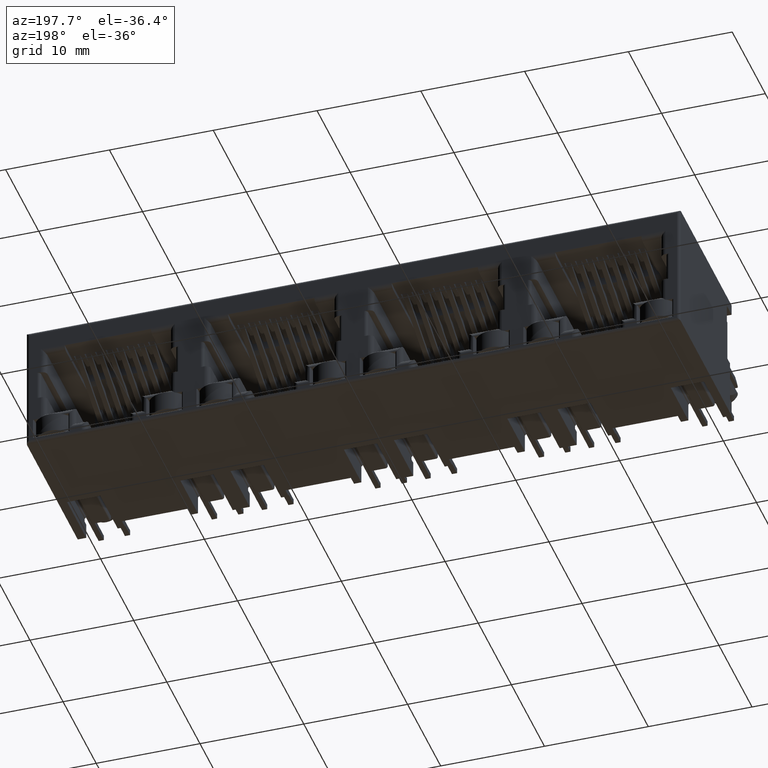
[diagram: clean part render]
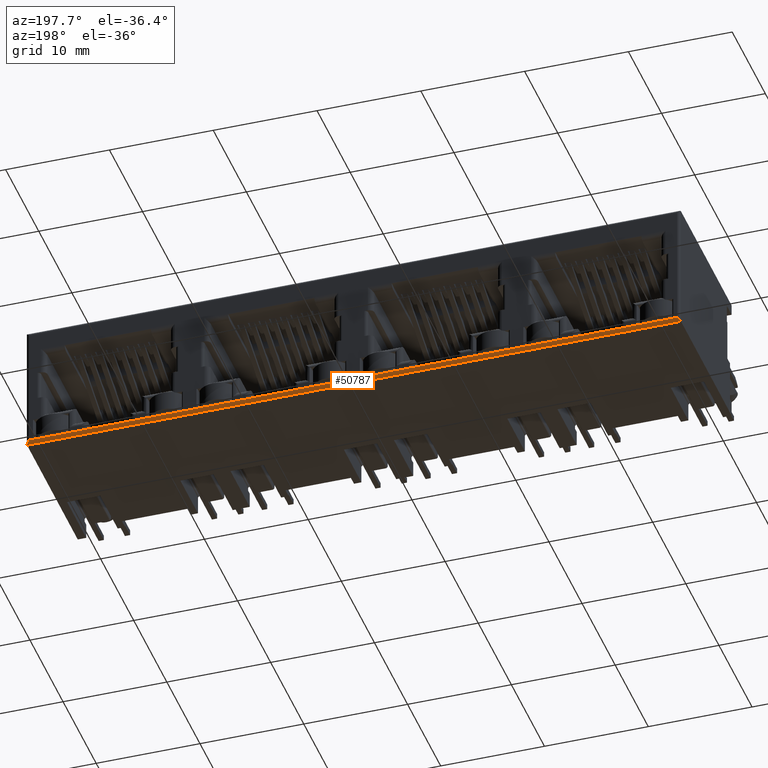
[diagram: same view with one face highlighted and labeled with its STEP entity id]
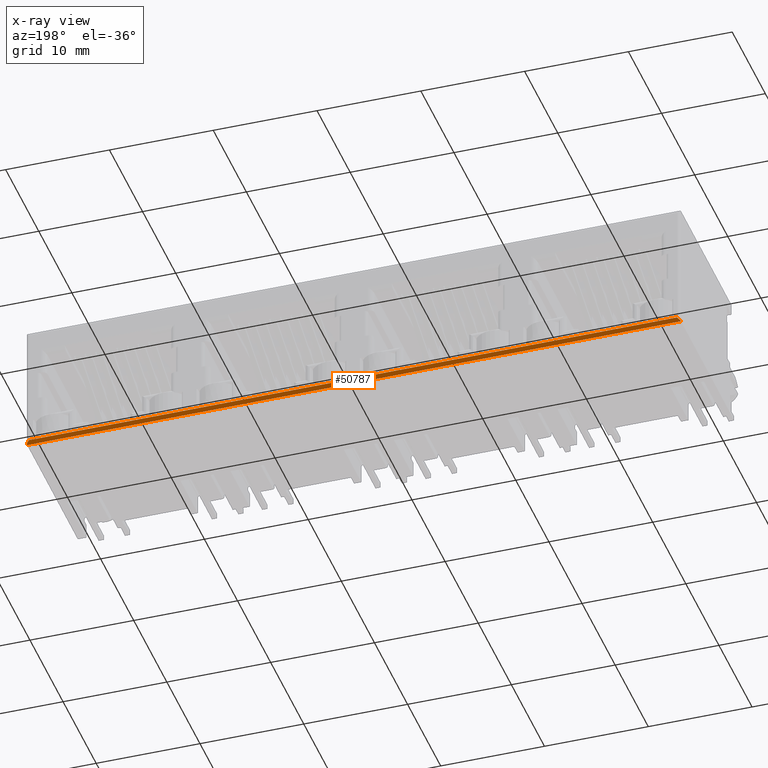
[diagram: x-ray of the same camera — body ghosted, the highlighted face saturated]
A machine part, auxiliary view. The second image highlights one B-rep face of the part: STEP entity #50787.
The next image is the same camera in x-ray: the body ghosted, the highlighted face saturated — about 0% of this face is hidden behind the body in this view.
In plain terms, the highlighted cylindrical surface (edge-blend (fillet) strip) has radius 0.3 mm, axis along (-1, 0, 0).
Its self-contained STEP definition (entity closure, byte-faithful):
#683 = VERTEX_POINT ( 'NONE', #9880 ) ;
#810 = CARTESIAN_POINT ( 'NONE',  ( -10.50000000000000200, 7.500000000000000900, -6.250000000000000000 ) ) ;
#1627 = EDGE_CURVE ( 'NONE', #51225, #26381, #4028, .T. ) ;
#2516 = CARTESIAN_POINT ( 'NONE',  ( -31.46370167239013300, 7.643919993221220300, -6.213948585552457400 ) ) ;
#2738 = CARTESIAN_POINT ( 'NONE',  ( -31.42383833046143200, 7.699808570683504000, -6.173833200348008500 ) ) ;
#3444 = CARTESIAN_POINT ( 'NONE',  ( 31.49338387020463200, 7.573333629634093200, -6.243086032836036000 ) ) ;
#3689 = CARTESIAN_POINT ( 'NONE',  ( 31.37162124110134800, 7.749361590918365300, -6.120420319536034300 ) ) ;
#3999 = B_SPLINE_CURVE_WITH_KNOTS ( 'NONE', 3,
 ( #11437, #50086, #810, #44407 ),
 .UNSPECIFIED., .F., .F.,
 ( 4, 4 ),
 ( 0.0000000000000000000, 1.000000000000000000 ),
 .UNSPECIFIED. ) ;
#4028 = B_SPLINE_CURVE_WITH_KNOTS ( 'NONE', 3,
 ( #38481, #22593, #11911, #27803 ),
 .UNSPECIFIED., .F., .F.,
 ( 4, 4 ),
 ( 0.0000000000000000000, 1.000000000000000000 ),
 .UNSPECIFIED. ) ;
#7693 = VERTEX_POINT ( 'NONE', #51445 ) ;
#8415 = CARTESIAN_POINT ( 'NONE',  ( 31.43033732893649900, 7.692274494915460900, -6.180320174675695300 ) ) ;
#8433 = FACE_OUTER_BOUND ( 'NONE', #50666, .T. ) ;
#8650 = CARTESIAN_POINT ( 'NONE',  ( 31.20000000000000300, 7.799999999999999800, -5.950000000000000200 ) ) ;
#9106 = CARTESIAN_POINT ( 'NONE',  ( 31.25332677024031400, 7.799999999999996300, -6.003326770237230800 ) ) ;
#9880 = CARTESIAN_POINT ( 'NONE',  ( -31.50000000000000000, 7.500000000000000000, -6.250000000000000000 ) ) ;
#11437 = CARTESIAN_POINT ( 'NONE',  ( 31.50000000000000000, 7.500000000000000000, -6.250000000000000900 ) ) ;
#11911 = CARTESIAN_POINT ( 'NONE',  ( -10.40000000000000000, 7.799999999999999800, -5.950000000000001100 ) ) ;
#13137 = CARTESIAN_POINT ( 'NONE',  ( -31.39801503292322200, 7.727054334832302200, -6.148002641398858400 ) ) ;
#14043 = CARTESIAN_POINT ( 'NONE',  ( -31.47234413134485100, 7.626595346149600600, -6.222647386684978500 ) ) ;
#15169 = EDGE_CURVE ( 'NONE', #7693, #683, #3999, .T. ) ;
#18585 = CARTESIAN_POINT ( 'NONE',  ( -31.29807618818646700, 7.785901599387450700, -6.049475267731421200 ) ) ;
#19068 = CARTESIAN_POINT ( 'NONE',  ( 31.50000000000000000, 7.500000000000000000, -6.250000000000000900 ) ) ;
#19528 = CARTESIAN_POINT ( 'NONE',  ( 31.43978249206968200, 7.680765248291165500, -6.189718848789207900 ) ) ;
#19785 = CARTESIAN_POINT ( 'NONE',  ( 31.41939756684283200, 7.704637637339855500, -6.169409564170822000 ) ) ;
#22427 = B_SPLINE_CURVE_WITH_KNOTS ( 'NONE', 3,
 ( #24498, #45632, #51326, #14043, #2516, #68123, #56779, #35398, #2738, #51089, #13137, #40856, #18585, #56529, #24039 ),
 .UNSPECIFIED., .F., .F.,
 ( 4, 2, 2, 1, 2, 2, 2, 4 ),
 ( 0.0000000000000000000, 0.2500000000000294200, 0.3750000000000514600, 0.4375000000000735000, 0.4687500000000751100, 0.5000000000000767200, 0.7500000000000383000, 1.000000000000000000 ),
 .UNSPECIFIED. ) ;
#22593 = CARTESIAN_POINT ( 'NONE',  ( 10.40000000000000600, 7.799999999999999800, -5.950000000000001100 ) ) ;
#24039 = CARTESIAN_POINT ( 'NONE',  ( -31.20000000000000300, 7.799999999999999800, -5.949999999999999300 ) ) ;
#24316 = ORIENTED_EDGE ( 'NONE', *, *, #67538, .F. ) ;
#24498 = CARTESIAN_POINT ( 'NONE',  ( -31.50000000000000000, 7.500000000000000000, -6.250000000000000000 ) ) ;
#25008 = ORIENTED_EDGE ( 'NONE', *, *, #29505, .T. ) ;
#26381 = VERTEX_POINT ( 'NONE', #48768 ) ;
#27803 = CARTESIAN_POINT ( 'NONE',  ( -31.20000000000000300, 7.799999999999999800, -5.949999999999999300 ) ) ;
#29505 = EDGE_CURVE ( 'NONE', #683, #26381, #22427, .T. ) ;
#30698 = CARTESIAN_POINT ( 'NONE',  ( 31.49999999999998600, 7.536151180754712800, -6.250000000000002700 ) ) ;
#35398 = CARTESIAN_POINT ( 'NONE',  ( -31.43032017467748700, 7.692274494911993400, -6.180337328939437200 ) ) ;
#36064 = ORIENTED_EDGE ( 'NONE', *, *, #1627, .F. ) ;
#37488 = CARTESIAN_POINT ( 'NONE',  ( 31.87800000000000400, 7.500000000000000000, -5.950000000000000200 ) ) ;
#38481 = CARTESIAN_POINT ( 'NONE',  ( 31.20000000000000300, 7.799999999999999800, -5.950000000000000200 ) ) ;
#40856 = CARTESIAN_POINT ( 'NONE',  ( -31.37042031953134100, 7.749361590926376700, -6.121621241089814100 ) ) ;
#40886 = CARTESIAN_POINT ( 'NONE',  ( 31.42383320034569000, 7.699808570686052200, -6.173838330459482800 ) ) ;
#41107 = CARTESIAN_POINT ( 'NONE',  ( 31.44827425821028300, 7.668687129847222100, -6.198145246270284400 ) ) ;
#43176 = DIRECTION ( 'NONE',  ( -1.000000000000000000, -0.0000000000000000000, 0.0000000000000000000 ) ) ;
#44407 = CARTESIAN_POINT ( 'NONE',  ( -31.50000000000000000, 7.500000000000000000, -6.250000000000000000 ) ) ;
#44888 = CYLINDRICAL_SURFACE ( 'NONE', #55527, 0.2999999999999999300 ) ;
#45632 = CARTESIAN_POINT ( 'NONE',  ( -31.50000000000000000, 7.536151180748889900, -6.250000000000000900 ) ) ;
#46133 = CARTESIAN_POINT ( 'NONE',  ( 31.46394858554807400, 7.643919993229065600, -6.213701672389199800 ) ) ;
#48768 = CARTESIAN_POINT ( 'NONE',  ( -31.20000000000000300, 7.799999999999999800, -5.949999999999999300 ) ) ;
#50086 = CARTESIAN_POINT ( 'NONE',  ( 10.50000000000000200, 7.500000000000000900, -6.250000000000000000 ) ) ;
#50666 = EDGE_LOOP ( 'NONE', ( #61275, #25008, #36064, #24316 ) ) ;
#50787 = ADVANCED_FACE ( 'NONE', ( #8433 ), #44888, .T. ) ;
#51089 = CARTESIAN_POINT ( 'NONE',  ( -31.41940956417350300, 7.704637637337289600, -6.169397566845265900 ) ) ;
#51225 = VERTEX_POINT ( 'NONE', #70379 ) ;
#51326 = CARTESIAN_POINT ( 'NONE',  ( -31.49308603283621700, 7.573333629625358800, -6.243383870206781000 ) ) ;
#51445 = CARTESIAN_POINT ( 'NONE',  ( 31.50000000000000000, 7.500000000000000000, -6.250000000000000900 ) ) ;
#52287 = CARTESIAN_POINT ( 'NONE',  ( 31.39800264140451300, 7.727054334826066300, -6.148015032925533400 ) ) ;
#55527 = AXIS2_PLACEMENT_3D ( 'NONE', #37488, #43176, #69515 ) ;
#56529 = CARTESIAN_POINT ( 'NONE',  ( -31.25332677023350700, 7.800000000000000700, -6.003326770230422900 ) ) ;
#56779 = CARTESIAN_POINT ( 'NONE',  ( -31.43971884879075800, 7.680765248286358600, -6.189782492073395500 ) ) ;
#57984 = CARTESIAN_POINT ( 'NONE',  ( 31.47264738668099300, 7.626595346158207000, -6.222344131344153000 ) ) ;
#59862 = B_SPLINE_CURVE_WITH_KNOTS ( 'NONE', 3,
 ( #19068, #30698, #3444, #57984, #46133, #41107, #19528, #8415, #40886, #19785, #52287, #3689, #63162, #9106, #8650 ),
 .UNSPECIFIED., .F., .F.,
 ( 4, 2, 2, 1, 2, 2, 2, 4 ),
 ( 0.0000000000000000000, 0.2500000000000456900, 0.3750000000000676100, 0.4375000000000786000, 0.4687500000000935400, 0.5000000000001084700, 0.7500000000000541800, 1.000000000000000000 ),
 .UNSPECIFIED. ) ;
#61275 = ORIENTED_EDGE ( 'NONE', *, *, #15169, .T. ) ;
#63162 = CARTESIAN_POINT ( 'NONE',  ( 31.29947526774536100, 7.785901599382546200, -6.048076188191883400 ) ) ;
#67538 = EDGE_CURVE ( 'NONE', #7693, #51225, #59862, .T. ) ;
#68123 = CARTESIAN_POINT ( 'NONE',  ( -31.44814524627161100, 7.668687129841280200, -6.198274258214369500 ) ) ;
#69515 = DIRECTION ( 'NONE',  ( 0.0000000000000000000, 0.0000000000000000000, 1.000000000000000000 ) ) ;
#70379 = CARTESIAN_POINT ( 'NONE',  ( 31.20000000000000300, 7.799999999999999800, -5.950000000000000200 ) ) ;